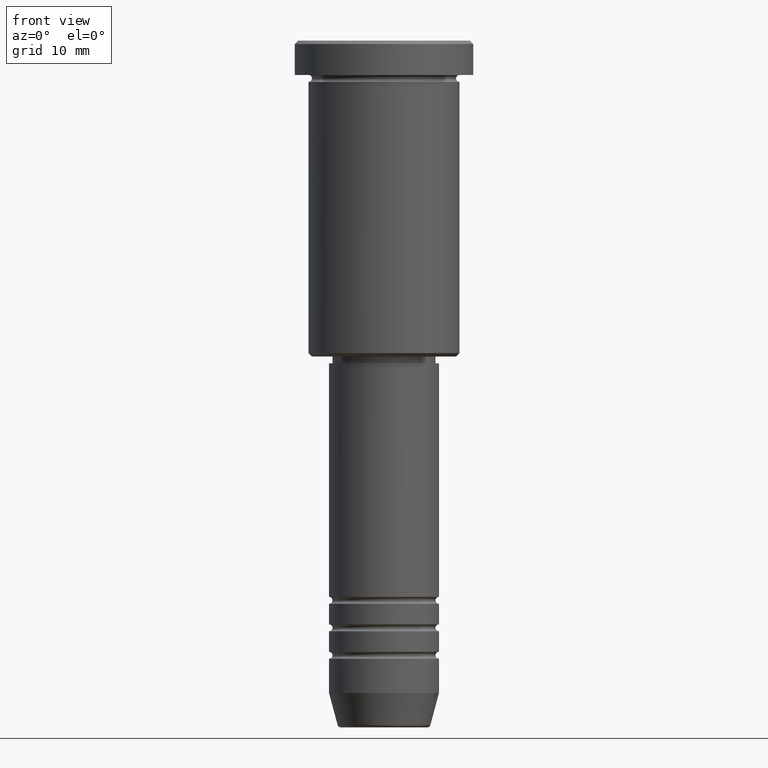
[diagram: clean part render]
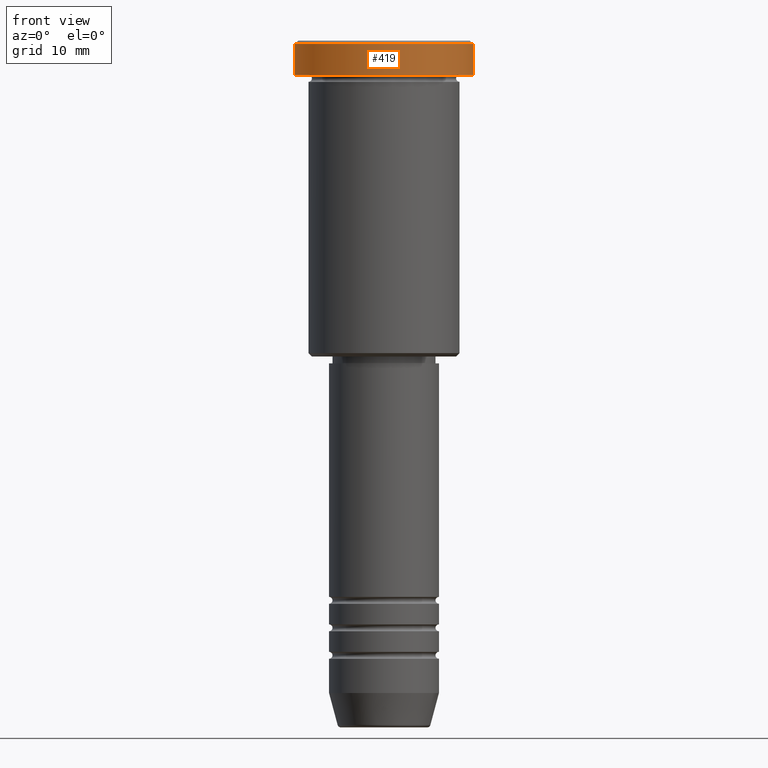
[diagram: same view with one face highlighted and labeled with its STEP entity id]
A machine part, front view. The second image highlights one B-rep face of the part: STEP entity #419.
In plain terms, the highlighted cylindrical surface (partial cylindrical patch) has radius 13 mm, axis along (-0, -0, 1).
Its self-contained STEP definition (entity closure, byte-faithful):
#1 = CARTESIAN_POINT ( 'NONE',  ( 13.00000000000000000, 0.000000000000000000, -5.000000000000000000 ) ) ;
#79 = CYLINDRICAL_SURFACE ( 'NONE', #920, 13.00000000000000000 ) ;
#126 = CARTESIAN_POINT ( 'NONE',  ( -13.00000000000000000, 1.592040838891559095E-15, -0.5000000000000073275 ) ) ;
#134 = VECTOR ( 'NONE', #776, 1000.000000000000000 ) ;
#149 = CARTESIAN_POINT ( 'NONE',  ( -13.00000000000000000, 1.592040838891559095E-15, -5.000000000000000000 ) ) ;
#182 = DIRECTION ( 'NONE',  ( 1.000000000000000000, 0.000000000000000000, 0.000000000000000000 ) ) ;
#197 = FACE_OUTER_BOUND ( 'NONE', #1119, .T. ) ;
#234 = EDGE_CURVE ( 'NONE', #1113, #928, #508, .T. ) ;
#278 = VERTEX_POINT ( 'NONE', #149 ) ;
#323 = ORIENTED_EDGE ( 'NONE', *, *, #234, .T. ) ;
#377 = DIRECTION ( 'NONE',  ( -0.000000000000000000, -0.000000000000000000, 1.000000000000000000 ) ) ;
#417 = CARTESIAN_POINT ( 'NONE',  ( 13.00000000000000000, 0.000000000000000000, -0.5000000000000073275 ) ) ;
#419 = ADVANCED_FACE ( 'NONE', ( #197 ), #79, .T. ) ;
#427 = DIRECTION ( 'NONE',  ( 0.000000000000000000, 0.000000000000000000, -1.000000000000000000 ) ) ;
#429 = CIRCLE ( 'NONE', #486, 13.00000000000000000 ) ;
#441 = DIRECTION ( 'NONE',  ( 1.000000000000000000, 0.000000000000000000, 0.000000000000000000 ) ) ;
#457 = CARTESIAN_POINT ( 'NONE',  ( 0.000000000000000000, 0.000000000000000000, 0.000000000000000000 ) ) ;
#484 = AXIS2_PLACEMENT_3D ( 'NONE', #886, #427, #182 ) ;
#486 = AXIS2_PLACEMENT_3D ( 'NONE', #645, #629, #441 ) ;
#500 = CIRCLE ( 'NONE', #484, 13.00000000000000000 ) ;
#508 = LINE ( 'NONE', #967, #134 ) ;
#525 = EDGE_CURVE ( 'NONE', #928, #809, #500, .T. ) ;
#531 = DIRECTION ( 'NONE',  ( -0.000000000000000000, -0.000000000000000000, 1.000000000000000000 ) ) ;
#548 = LINE ( 'NONE', #639, #834 ) ;
#629 = DIRECTION ( 'NONE',  ( -0.000000000000000000, -0.000000000000000000, 1.000000000000000000 ) ) ;
#639 = CARTESIAN_POINT ( 'NONE',  ( -13.00000000000000000, 1.592040838891559095E-15, 0.000000000000000000 ) ) ;
#645 = CARTESIAN_POINT ( 'NONE',  ( 0.000000000000000000, 0.000000000000000000, -5.000000000000000000 ) ) ;
#666 = EDGE_CURVE ( 'NONE', #278, #809, #548, .T. ) ;
#668 = ORIENTED_EDGE ( 'NONE', *, *, #666, .F. ) ;
#776 = DIRECTION ( 'NONE',  ( -0.000000000000000000, -0.000000000000000000, 1.000000000000000000 ) ) ;
#798 = ORIENTED_EDGE ( 'NONE', *, *, #1130, .T. ) ;
#809 = VERTEX_POINT ( 'NONE', #126 ) ;
#834 = VECTOR ( 'NONE', #377, 1000.000000000000000 ) ;
#886 = CARTESIAN_POINT ( 'NONE',  ( 0.000000000000000000, 0.000000000000000000, -0.5000000000000073275 ) ) ;
#896 = DIRECTION ( 'NONE',  ( 1.000000000000000000, 0.000000000000000000, 0.000000000000000000 ) ) ;
#920 = AXIS2_PLACEMENT_3D ( 'NONE', #457, #531, #896 ) ;
#928 = VERTEX_POINT ( 'NONE', #417 ) ;
#967 = CARTESIAN_POINT ( 'NONE',  ( 13.00000000000000000, 0.000000000000000000, 0.000000000000000000 ) ) ;
#1091 = ORIENTED_EDGE ( 'NONE', *, *, #525, .T. ) ;
#1113 = VERTEX_POINT ( 'NONE', #1 ) ;
#1119 = EDGE_LOOP ( 'NONE', ( #668, #798, #323, #1091 ) ) ;
#1130 = EDGE_CURVE ( 'NONE', #278, #1113, #429, .T. ) ;